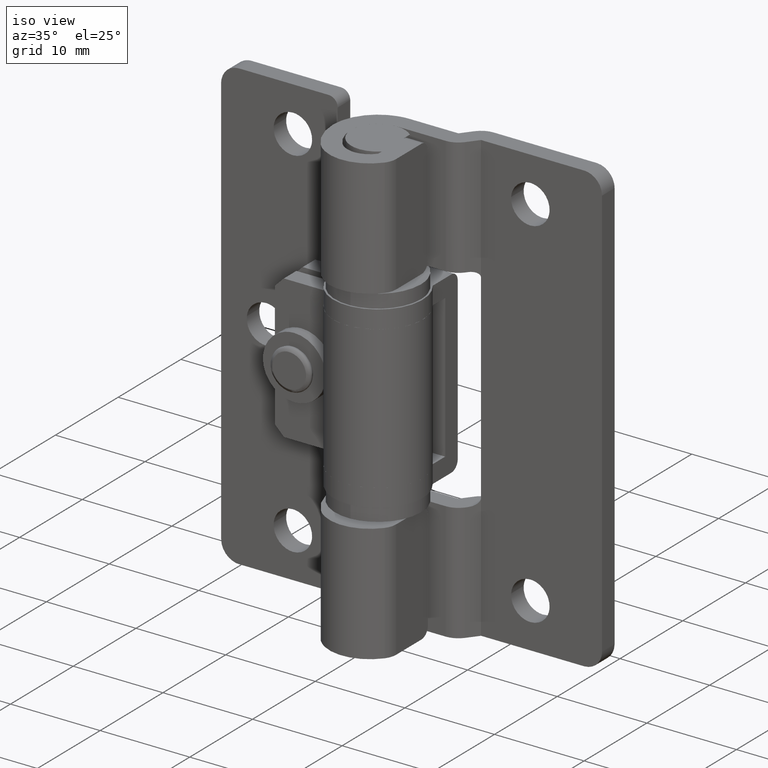
[diagram: clean part render]
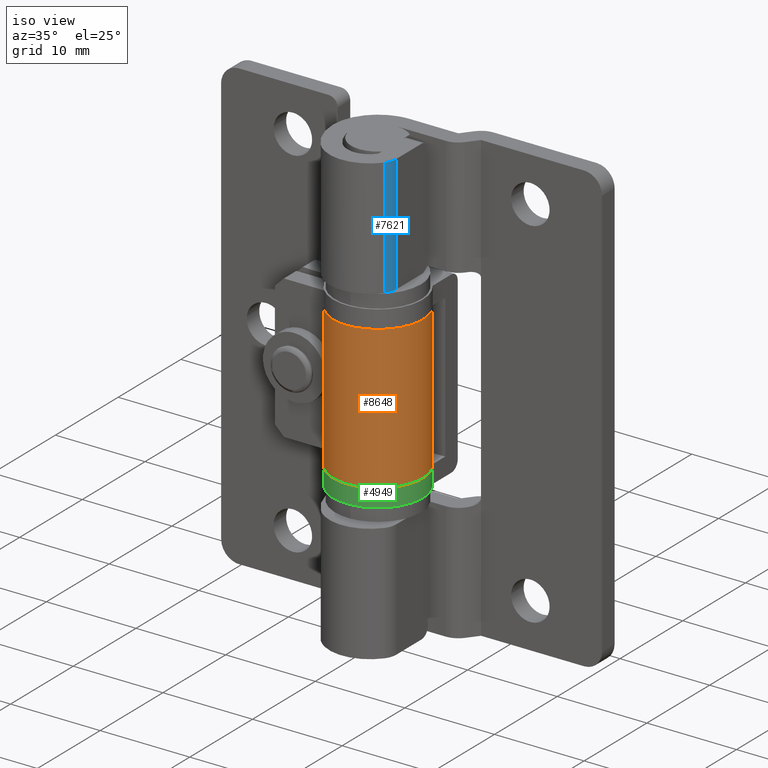
[diagram: same view with three faces highlighted in distinct colors, each labeled with its STEP entity id]
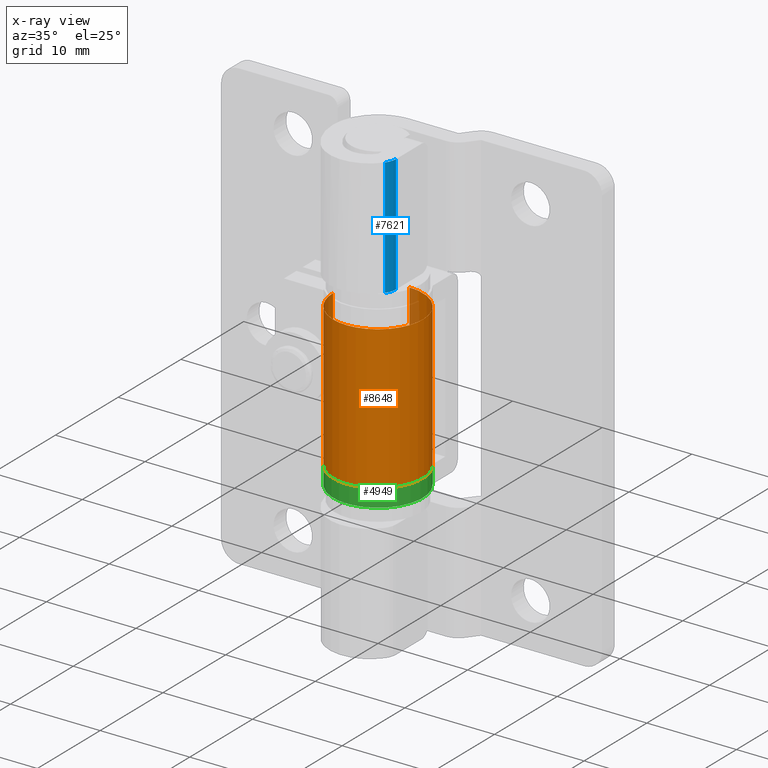
[diagram: x-ray of the same camera — body ghosted, the three highlighted faces saturated]
A machine part, iso view with three faces highlighted in distinct colors.
The next image is the same camera in x-ray (body ghosted, the three faces saturated) — at least one of them is partly hidden behind the body in this view.
Their STEP definitions:

[orange] entity #8648 — the highlighted face is a freeform B-spline surface patch.
#8348=CARTESIAN_POINT('',(0.0,5.0,33.0));
#8349=VERTEX_POINT('',#8348);
#8390=CARTESIAN_POINT('',(-5.0,-6.123032E-016,33.0));
#8391=VERTEX_POINT('',#8390);
#8397=CARTESIAN_POINT('',(0.0,5.0,33.0));
#8398=CARTESIAN_POINT('',(5.000000000000001,5.000000000000001,33.0));
#8399=CARTESIAN_POINT('',(5.0,0.0,33.0));
#8400=CARTESIAN_POINT('',(5.000000000000001,-5.000000000000001,33.0));
#8401=CARTESIAN_POINT('',(0.0,-5.0,33.0));
#8402=CARTESIAN_POINT('',(-5.000000000000001,-5.000000000000001,33.0));
#8403=CARTESIAN_POINT('',(-5.0,0.0,33.0));
#8411=(BOUNDED_CURVE()B_SPLINE_CURVE(2,(#8397,#8398,#8399,#8400,#8401,#8402,#8403),.UNSPECIFIED.,.F.,.U.)B_SPLINE_CURVE_WITH_KNOTS((3,2,2,3),(0.0,0.333333333333333,0.666666666666667,1.0),.UNSPECIFIED.)CURVE()GEOMETRIC_REPRESENTATION_ITEM()RATIONAL_B_SPLINE_CURVE((1.0,0.707106781186548,1.0,0.707106781186548,1.0,0.707106781186548,1.0))REPRESENTATION_ITEM(''));
#8412=EDGE_CURVE('',#8349,#8391,#8411,.T.);
#8422=CARTESIAN_POINT('',(-5.0,-6.123032E-016,17.0));
#8423=VERTEX_POINT('',#8422);
#8464=CARTESIAN_POINT('',(0.0,5.0,17.0));
#8465=VERTEX_POINT('',#8464);
#8471=CARTESIAN_POINT('',(0.0,5.0,17.0));
#8472=CARTESIAN_POINT('',(5.000000000000001,5.000000000000001,17.000000000000004));
#8473=CARTESIAN_POINT('',(5.0,0.0,17.0));
#8474=CARTESIAN_POINT('',(5.000000000000001,-5.000000000000001,17.000000000000004));
#8475=CARTESIAN_POINT('',(0.0,-5.0,17.0));
#8476=CARTESIAN_POINT('',(-5.000000000000001,-5.000000000000001,17.000000000000004));
#8477=CARTESIAN_POINT('',(-5.0,0.0,17.0));
#8485=(BOUNDED_CURVE()B_SPLINE_CURVE(2,(#8471,#8472,#8473,#8474,#8475,#8476,#8477),.UNSPECIFIED.,.F.,.U.)B_SPLINE_CURVE_WITH_KNOTS((3,2,2,3),(0.0,0.333333333333333,0.666666666666667,1.0),.UNSPECIFIED.)CURVE()GEOMETRIC_REPRESENTATION_ITEM()RATIONAL_B_SPLINE_CURVE((1.0,0.707106781186548,1.0,0.707106781186548,1.0,0.707106781186548,1.0))REPRESENTATION_ITEM(''));
#8486=EDGE_CURVE('',#8465,#8423,#8485,.T.);
#8602=CARTESIAN_POINT('',(-5.0,-6.123032E-016,17.0));
#8603=CARTESIAN_POINT('',(-5.0,-6.123032E-016,33.0));
#8604=QUASI_UNIFORM_CURVE('',1,(#8602,#8603),.UNSPECIFIED.,.F.,.U.);
#8605=EDGE_CURVE('',#8423,#8391,#8604,.T.);
#8616=CARTESIAN_POINT('',(-0.043632677491865,4.999809615320855,16.600000000000001));
#8617=CARTESIAN_POINT('',(-0.043632677491865,4.999809615320855,33.409999999999997));
#8618=CARTESIAN_POINT('',(5.073902907545544,5.044469671785975,16.599999999999998));
#8619=CARTESIAN_POINT('',(5.073902907545544,5.044469671785975,33.409999999999997));
#8620=CARTESIAN_POINT('',(4.999471159635536,-0.072719488257917,16.600000000000001));
#8621=CARTESIAN_POINT('',(4.999471159635536,-0.072719488257917,33.409999999999997));
#8622=CARTESIAN_POINT('',(4.925039411725527,-5.189908648301809,16.599999999999998));
#8623=CARTESIAN_POINT('',(4.925039411725527,-5.189908648301809,33.409999999999997));
#8624=CARTESIAN_POINT('',(-0.189032275121957,-4.996425402121220,16.600000000000001));
#8625=CARTESIAN_POINT('',(-0.189032275121957,-4.996425402121220,33.409999999999997));
#8626=CARTESIAN_POINT('',(-5.303103961969442,-4.802942155940633,16.599999999999998));
#8627=CARTESIAN_POINT('',(-5.303103961969442,-4.802942155940633,33.409999999999997));
#8628=CARTESIAN_POINT('',(-4.990673992109334,0.305242697674286,16.600000000000001));
#8629=CARTESIAN_POINT('',(-4.990673992109334,0.305242697674286,33.409999999999997));
#8637=(BOUNDED_SURFACE()B_SPLINE_SURFACE(1,2,((#8616,#8618,#8620,#8622,#8624,#8626,#8628),(#8617,#8619,#8621,#8623,#8625,#8627,#8629)),.UNSPECIFIED.,.F.,.F.,.U.)B_SPLINE_SURFACE_WITH_KNOTS((2,2),(3,2,2,3),(0.0,16.809999999999999),(0.0,8.420920780775573,16.841841561551149,25.262762342326720),.UNSPECIFIED.)GEOMETRIC_REPRESENTATION_ITEM()RATIONAL_B_SPLINE_SURFACE(((1.0,0.698831540367900,1.0,0.698831540367900,1.0,0.698831540367900,1.0),(1.0,0.698831540367900,1.0,0.698831540367900,1.0,0.698831540367900,1.0)))REPRESENTATION_ITEM('')SURFACE());
#8638=ORIENTED_EDGE('',*,*,#8412,.T.);
#8639=ORIENTED_EDGE('',*,*,#8605,.F.);
#8640=ORIENTED_EDGE('',*,*,#8486,.F.);
#8641=CARTESIAN_POINT('',(0.0,5.0,17.0));
#8642=CARTESIAN_POINT('',(0.0,5.0,33.0));
#8643=QUASI_UNIFORM_CURVE('',1,(#8641,#8642),.UNSPECIFIED.,.F.,.U.);
#8644=EDGE_CURVE('',#8465,#8349,#8643,.T.);
#8645=ORIENTED_EDGE('',*,*,#8644,.T.);
#8646=EDGE_LOOP('',(#8638,#8639,#8640,#8645));
#8647=FACE_OUTER_BOUND('',#8646,.T.);
#8648=ADVANCED_FACE('',(#8647),#8637,.T.);

[blue] entity #7621 — the highlighted face is a freeform B-spline surface patch.
#6318=CARTESIAN_POINT('',(4.000000000000100,-2.817617000000000,36.850000000000001));
#6319=VERTEX_POINT('',#6318);
#6325=CARTESIAN_POINT('',(3.582869031155540,-4.040124926440040,36.850000000000001));
#6326=VERTEX_POINT('',#6325);
#6327=CARTESIAN_POINT('',(3.582869031155539,-4.040124926440040,36.850000000000001));
#6328=CARTESIAN_POINT('',(4.000000000000000,-3.500035428253717,36.849999999999994));
#6329=CARTESIAN_POINT('',(4.000000000000100,-2.817617000000000,36.850000000000001));
#6337=(BOUNDED_CURVE()B_SPLINE_CURVE(2,(#6327,#6328,#6329),.UNSPECIFIED.,.F.,.U.)CURVE()GEOMETRIC_REPRESENTATION_ITEM()QUASI_UNIFORM_CURVE()RATIONAL_B_SPLINE_CURVE((1.0,0.946423403022603,1.0))REPRESENTATION_ITEM(''));
#6338=EDGE_CURVE('',#6326,#6319,#6337,.T.);
#6619=CARTESIAN_POINT('',(4.000000000000100,-2.817617000000000,50.0));
#6620=VERTEX_POINT('',#6619);
#6782=CARTESIAN_POINT('',(3.582869031155540,-4.040124926440040,50.0));
#6783=VERTEX_POINT('',#6782);
#6799=CARTESIAN_POINT('',(4.0,-2.817617000000000,50.0));
#6800=CARTESIAN_POINT('',(4.000000000000001,-3.500035428253716,50.0));
#6801=CARTESIAN_POINT('',(3.582869031155539,-4.040124926440039,50.0));
#6809=(BOUNDED_CURVE()B_SPLINE_CURVE(2,(#6799,#6800,#6801),.UNSPECIFIED.,.F.,.U.)CURVE()GEOMETRIC_REPRESENTATION_ITEM()QUASI_UNIFORM_CURVE()RATIONAL_B_SPLINE_CURVE((1.0,0.946423403022603,1.0))REPRESENTATION_ITEM(''));
#6810=EDGE_CURVE('',#6620,#6783,#6809,.T.);
#7588=CARTESIAN_POINT('',(3.582869031155540,-4.040124926440040,36.850000000000001));
#7589=CARTESIAN_POINT('',(3.582869031155540,-4.040124926440040,50.0));
#7590=QUASI_UNIFORM_CURVE('',1,(#7588,#7589),.UNSPECIFIED.,.F.,.U.);
#7591=EDGE_CURVE('',#6326,#6783,#7590,.T.);
#7597=CARTESIAN_POINT('',(3.999314649951114,-2.765263103384251,36.521250000000002));
#7598=CARTESIAN_POINT('',(3.999314649951114,-2.765263103384251,50.336968750000011));
#7599=CARTESIAN_POINT('',(4.018903145018697,-3.513317549962585,36.521249999999988));
#7600=CARTESIAN_POINT('',(4.018903145018697,-3.513317549962585,50.336968750000004));
#7601=CARTESIAN_POINT('',(3.542644643766518,-4.090506430806332,36.521249999999988));
#7602=CARTESIAN_POINT('',(3.542644643766518,-4.090506430806332,50.336968750000011));
#7610=(BOUNDED_SURFACE()B_SPLINE_SURFACE(1,2,((#7597,#7599,#7601),(#7598,#7600,#7602)),.UNSPECIFIED.,.F.,.F.,.U.)B_SPLINE_SURFACE_WITH_KNOTS((2,2),(3,3),(0.0,13.815718750000020),(0.0,0.976348373926990),.UNSPECIFIED.)GEOMETRIC_REPRESENTATION_ITEM()RATIONAL_B_SPLINE_SURFACE(((1.0,0.935151357413619,0.996932448308409),(1.0,0.935151357413619,0.996932448308409)))REPRESENTATION_ITEM('')SURFACE());
#7611=ORIENTED_EDGE('',*,*,#7591,.F.);
#7612=ORIENTED_EDGE('',*,*,#6338,.T.);
#7613=CARTESIAN_POINT('',(4.000000000000100,-2.817617000000000,36.850000000000001));
#7614=CARTESIAN_POINT('',(4.000000000000100,-2.817617000000000,50.0));
#7615=QUASI_UNIFORM_CURVE('',1,(#7613,#7614),.UNSPECIFIED.,.F.,.U.);
#7616=EDGE_CURVE('',#6319,#6620,#7615,.T.);
#7617=ORIENTED_EDGE('',*,*,#7616,.T.);
#7618=ORIENTED_EDGE('',*,*,#6810,.T.);
#7619=EDGE_LOOP('',(#7611,#7612,#7617,#7618));
#7620=FACE_OUTER_BOUND('',#7619,.T.);
#7621=ADVANCED_FACE('',(#7620),#7610,.T.);

[green] entity #4949 — the highlighted face is a freeform B-spline surface patch.
#4877=CARTESIAN_POINT('',(3.920098454978705,3.103679768158041,14.949999999999999));
#4878=CARTESIAN_POINT('',(3.920098454978705,3.103679768158041,17.051250000000000));
#4879=CARTESIAN_POINT('',(8.394034352867676,-2.547118803563445,14.949999999999996));
#4880=CARTESIAN_POINT('',(8.394034352867676,-2.547118803563445,17.051250000000000));
#4881=CARTESIAN_POINT('',(1.534283108969174,-4.758778765768784,14.949999999999999));
#4882=CARTESIAN_POINT('',(1.534283108969174,-4.758778765768784,17.051250000000000));
#4883=CARTESIAN_POINT('',(-5.325468134929329,-6.970438727974122,14.949999999999996));
#4884=CARTESIAN_POINT('',(-5.325468134929329,-6.970438727974122,17.051250000000000));
#4885=CARTESIAN_POINT('',(-4.994732994384163,0.229439130948052,14.949999999999999));
#4886=CARTESIAN_POINT('',(-4.994732994384163,0.229439130948052,17.051250000000000));
#4894=(BOUNDED_SURFACE()B_SPLINE_SURFACE(1,2,((#4877,#4879,#4881,#4883,#4885),(#4878,#4880,#4882,#4884,#4886)),.UNSPECIFIED.,.F.,.F.,.U.)B_SPLINE_SURFACE_WITH_KNOTS((2,2),(3,2,3),(0.0,2.101250000000003),(0.0,10.466861556878710,20.933723113757409),.UNSPECIFIED.)GEOMETRIC_REPRESENTATION_ITEM()RATIONAL_B_SPLINE_SURFACE(((1.0,0.569996762596303,1.0,0.569996762596303,1.0),(1.0,0.569996762596303,1.0,0.569996762596303,1.0)))REPRESENTATION_ITEM('')SURFACE());
#4895=CARTESIAN_POINT('',(4.000000000000100,2.999999999999870,15.0));
#4896=VERTEX_POINT('',#4895);
#4897=CARTESIAN_POINT('',(4.000000000000100,2.999999999999870,17.0));
#4898=VERTEX_POINT('',#4897);
#4899=CARTESIAN_POINT('',(4.000000000000100,2.999999999999870,15.0));
#4900=CARTESIAN_POINT('',(4.000000000000100,2.999999999999870,17.0));
#4901=QUASI_UNIFORM_CURVE('',1,(#4899,#4900),.UNSPECIFIED.,.F.,.U.);
#4902=EDGE_CURVE('',#4896,#4898,#4901,.T.);
#4903=ORIENTED_EDGE('',*,*,#4902,.T.);
#4904=CARTESIAN_POINT('',(-5.0,-6.123032E-016,17.0));
#4905=VERTEX_POINT('',#4904);
#4906=CARTESIAN_POINT('',(4.000000000000099,2.999999999999868,17.0));
#4907=CARTESIAN_POINT('',(6.191247429068664,0.078336761241579,16.999999999999996));
#4908=CARTESIAN_POINT('',(4.074624242829740,-2.897833204265590,17.0));
#4909=CARTESIAN_POINT('',(1.958001056590815,-5.874003169772760,16.999999999999996));
#4910=CARTESIAN_POINT('',(-1.520999471704593,-4.763041109110266,17.0));
#4911=CARTESIAN_POINT('',(-5.0,-3.652079048447771,16.999999999999996));
#4912=CARTESIAN_POINT('',(-5.0,0.0,17.0));
#4920=(BOUNDED_CURVE()B_SPLINE_CURVE(2,(#4906,#4907,#4908,#4909,#4910,#4911,#4912),.UNSPECIFIED.,.F.,.U.)B_SPLINE_CURVE_WITH_KNOTS((3,2,2,3),(0.0,0.333333333333333,0.666666666666667,1.0),.UNSPECIFIED.)CURVE()GEOMETRIC_REPRESENTATION_ITEM()RATIONAL_B_SPLINE_CURVE((1.0,0.807527056618204,1.0,0.807527056618204,1.0,0.807527056618204,1.0))REPRESENTATION_ITEM(''));
#4921=EDGE_CURVE('',#4898,#4905,#4920,.T.);
#4922=ORIENTED_EDGE('',*,*,#4921,.T.);
#4923=CARTESIAN_POINT('',(-5.0,0.0,15.0));
#4924=VERTEX_POINT('',#4923);
#4925=CARTESIAN_POINT('',(-5.0,0.0,15.0));
#4926=CARTESIAN_POINT('',(-5.0,-6.123032E-016,17.0));
#4927=QUASI_UNIFORM_CURVE('',1,(#4925,#4926),.UNSPECIFIED.,.F.,.U.);
#4928=EDGE_CURVE('',#4924,#4905,#4927,.T.);
#4929=ORIENTED_EDGE('',*,*,#4928,.F.);
#4930=CARTESIAN_POINT('',(4.000000000000099,2.999999999999868,15.0));
#4931=CARTESIAN_POINT('',(6.191247429068664,0.078336761241579,15.000000000000004));
#4932=CARTESIAN_POINT('',(4.074624242829740,-2.897833204265590,15.0));
#4933=CARTESIAN_POINT('',(1.958001056590815,-5.874003169772760,15.000000000000004));
#4934=CARTESIAN_POINT('',(-1.520999471704593,-4.763041109110266,15.0));
#4935=CARTESIAN_POINT('',(-5.0,-3.652079048447771,15.000000000000004));
#4936=CARTESIAN_POINT('',(-5.0,0.0,15.0));
#4944=(BOUNDED_CURVE()B_SPLINE_CURVE(2,(#4930,#4931,#4932,#4933,#4934,#4935,#4936),.UNSPECIFIED.,.F.,.U.)B_SPLINE_CURVE_WITH_KNOTS((3,2,2,3),(0.0,0.333333333333333,0.666666666666667,1.0),.UNSPECIFIED.)CURVE()GEOMETRIC_REPRESENTATION_ITEM()RATIONAL_B_SPLINE_CURVE((1.0,0.807527056618204,1.0,0.807527056618204,1.0,0.807527056618204,1.0))REPRESENTATION_ITEM(''));
#4945=EDGE_CURVE('',#4896,#4924,#4944,.T.);
#4946=ORIENTED_EDGE('',*,*,#4945,.F.);
#4947=EDGE_LOOP('',(#4903,#4922,#4929,#4946));
#4948=FACE_OUTER_BOUND('',#4947,.T.);
#4949=ADVANCED_FACE('',(#4948),#4894,.T.);